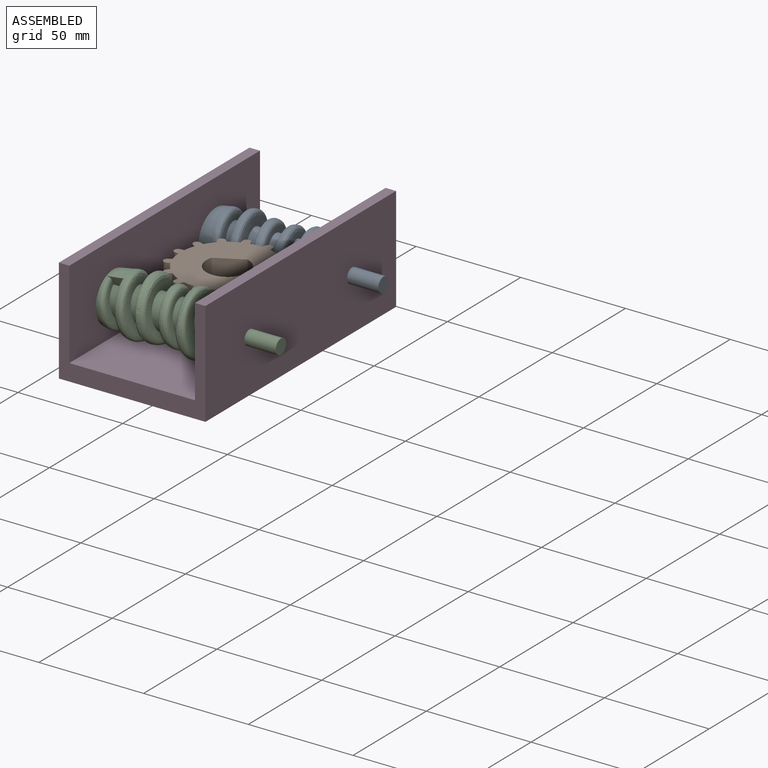
[diagram: assembled view]
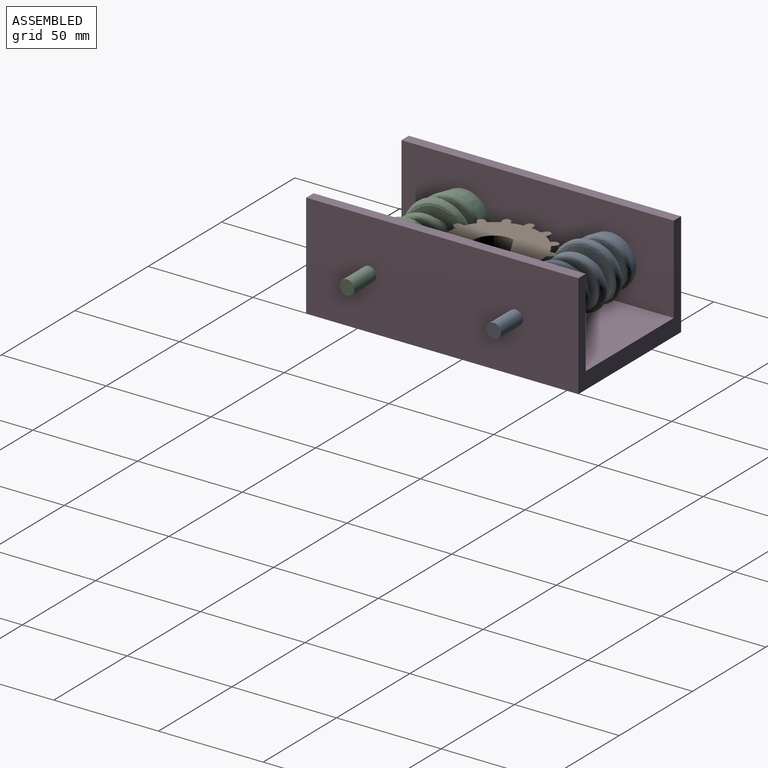
[diagram: assembled view, second angle]
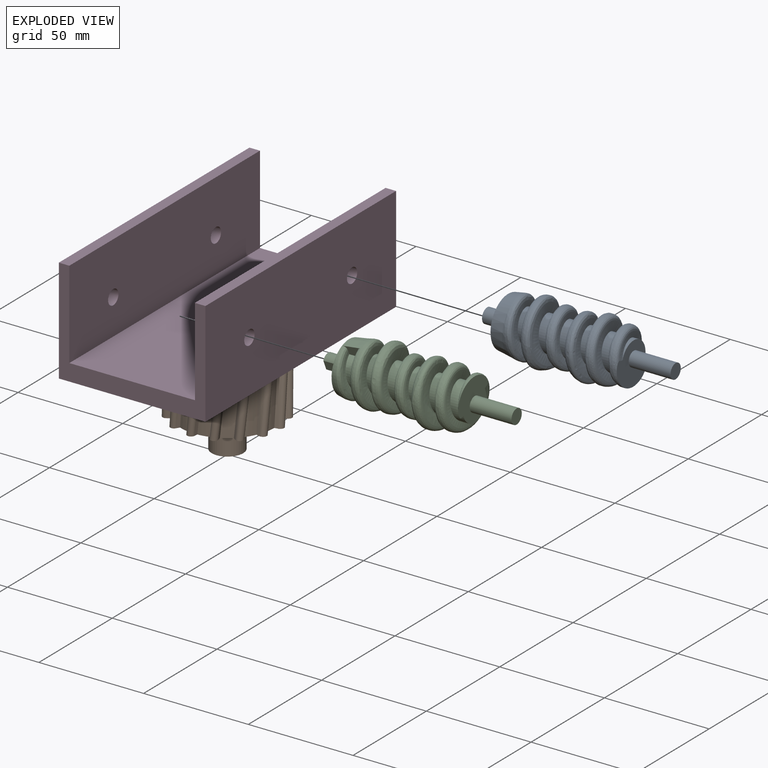
[diagram: exploded view]
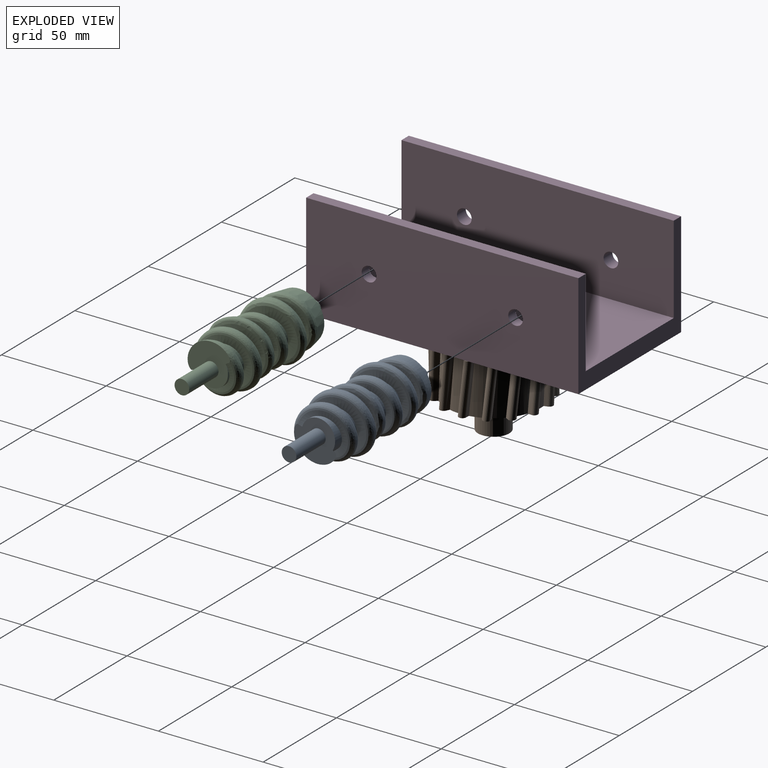
[diagram: exploded view, second angle]
ASSEMBLY  parts=4 mates=3
PART A: 21 faces, bbox 65.4x65.4x91.4 mm
  f0: plane 22.6x21.53mm, normal (0,0,1), area 265.4mm2, adj f2,f3,f4,f6,f11,f15,f20
  f1: plane 9.69x5.84mm, normal (0,1,0), area 28.1mm2, adj f2,f3,f4,f7,f17,f18
  f2: bspline ~64x64mm, area 1103.4mm2, adj f0,f1,f4,f15,f16,f17
  f3: bspline ~60x60mm, area 1228.2mm2, adj f0,f1,f4,f18,f19,f20
  f4: cylinder r=8mm len=57.7mm, axis (0,0,1), area 1580.7mm2, adj f0,f1,f2,f3
  f5: torus R=35mm, axis (0,0,1), area 60.1mm2, adj f15,f16,f18,f19
  f6: cone r=15.36mm half-angle=10deg, axis (0,0,-1), area 80.6mm2, adj f0,f15,f19,f20
  f7: cone r=15.36mm half-angle=10deg, axis (0,0,1), area 414.7mm2, adj f1,f8,f16,f17,f18
  f8: plane 24.02x24.02mm, normal (0,0,-1), area 413.9mm2, adj f7,f9,f18
  f9: cylinder r=3.5mm len=10mm, axis (0,0,1), area 192.8mm2, adj f8,f10,f13,f14
  f10: plane 7x6mm, normal (0,0,-1), area 35.1mm2, adj f9,f13
  f11: cylinder r=3.5mm len=20mm, axis (0,0,-1), area 439.8mm2, adj f0,f12
  f12: plane 7x7mm, normal (0,0,1), area 38.5mm2, adj f11
  f13: plane 5x4.9mm, normal (0,1,0), area 24.5mm2, adj f9,f10,f14
  f14: plane 4.9x1mm, normal (0,0,-1), area 3.4mm2, adj f9,f13
  f15: bspline ~30.28x30.17mm, area 648.9mm2, adj f0,f2,f5,f6,f16,f19
  f16: bspline ~30.89x29.47mm, area 686.9mm2, adj f2,f5,f7,f15,f17,f18
  f17: bspline ~29.09x29.01mm, area 252.1mm2, adj f1,f2,f7,f16
  f18: bspline ~30.16x29.47mm, area 602.8mm2, adj f1,f3,f5,f7,f8,f16,f19
  f19: bspline ~32.01x29.47mm, area 678.8mm2, adj f3,f5,f6,f15,f18,f20
  f20: bspline ~29.9x29.18mm, area 460.4mm2, adj f0,f3,f6,f19
PART B: 82 faces, bbox 54.8x54.5x52.9 mm
  f0: plane 51.76x51.52mm, normal (0,0,1), area 1468.9mm2, adj f1,f3,f4,f5,f6,f7,f8,f9
  f1: bspline ~37.5x5.43mm, area 8mm2, adj f0,f2,f3,f6
  f2: plane 51.74x51.48mm, normal (0,0,-1), area 1577mm2, adj f1,f3,f4,f5,f6,f7,f8,f9
  f3: bspline ~37.5x4.01mm, area 37.4mm2, adj f0,f1,f2,f4
  f4: bspline ~37.5x7.56mm, area 131.8mm2, adj f0,f2,f3,f5
  f5: bspline ~37.5x4.07mm, area 44.7mm2, adj f0,f2,f4,f11
  f6: cylinder r=22.5mm len=25mm, axis (0,0,-1), area 136.8mm2, adj f0,f1,f2,f75
  f7: bspline ~37.5x4.67mm, area 8mm2, adj f0,f2,f8,f11
  f8: bspline ~37.5x4.42mm, area 37.4mm2, adj f0,f2,f7,f9
  f9: bspline ~37.5x8.04mm, area 131.8mm2, adj f0,f2,f8,f10
  f10: bspline ~37.5x3.94mm, area 44.7mm2, adj f0,f2,f9,f16
  f11: cylinder r=22.5mm len=25mm, axis (0,0,-1), area 136.8mm2, adj f0,f2,f5,f7
  f12: bspline ~37.5x5.29mm, area 8mm2, adj f0,f2,f13,f16
  f13: bspline ~37.5x4.07mm, area 37.4mm2, adj f0,f2,f12,f14
  f14: bspline ~37.5x7.46mm, area 131.8mm2, adj f0,f2,f13,f15
  f15: bspline ~37.5x4.36mm, area 44.7mm2, adj f0,f2,f14,f21
  f16: cylinder r=22.5mm len=25mm, axis (0,0,-1), area 136.8mm2, adj f0,f2,f10,f12
  f17: bspline ~37.5x5.73mm, area 8mm2, adj f0,f2,f18,f21
  f18: bspline ~37.5x3.88mm, area 37.4mm2, adj f0,f2,f17,f19
  f19: bspline ~37.5x8.02mm, area 131.8mm2, adj f0,f2,f18,f20
  f20: bspline ~37.5x4.49mm, area 44.7mm2, adj f0,f2,f19,f26
  f21: cylinder r=22.5mm len=25mm, axis (0,0,-1), area 136.8mm2, adj f0,f2,f15,f17
  f22: bspline ~37.5x5.32mm, area 8mm2, adj f0,f2,f23,f26
  f23: bspline ~37.5x4.18mm, area 37.4mm2, adj f0,f2,f22,f24
  f24: bspline ~37.5x7.72mm, area 131.8mm2, adj f0,f2,f23,f25
  f25: bspline ~37.5x3.96mm, area 44.7mm2, adj f0,f2,f24,f31
  f26: cylinder r=22.5mm len=25mm, axis (0,0,-1), area 136.8mm2, adj f0,f2,f20,f22
  f27: bspline ~37.5x4.35mm, area 8mm2, adj f0,f2,f28,f31
  f28: bspline ~25x3.22mm, area 37.4mm2, adj f0,f2,f27,f29
  f29: bspline ~37.5x7.98mm, area 131.8mm2, adj f0,f2,f28,f30
  f30: bspline ~37.5x3.91mm, area 44.7mm2, adj f0,f2,f29,f36
  f31: cylinder r=22.5mm len=25mm, axis (0,0,-1), area 136.8mm2, adj f0,f2,f25,f27
  f32: bspline ~37.5x5.49mm, area 8mm2, adj f0,f2,f33,f36
  f33: bspline ~37.5x3.87mm, area 37.4mm2, adj f0,f2,f32,f34
  f34: bspline ~37.5x7.73mm, area 131.8mm2, adj f0,f2,f33,f35
  f35: bspline ~37.5x4.46mm, area 44.7mm2, adj f0,f2,f34,f41
  f36: cylinder r=22.5mm len=25mm, axis (0,0,-1), area 136.8mm2, adj f0,f2,f30,f32
  f37: bspline ~37.5x5.69mm, area 8mm2, adj f0,f2,f38,f41
  f38: bspline ~37.5x3.87mm, area 37.4mm2, adj f0,f2,f37,f39
  f39: bspline ~37.5x7.94mm, area 131.8mm2, adj f0,f2,f38,f40
  f40: bspline ~37.5x4.4mm, area 44.7mm2, adj f0,f2,f39,f46
  f41: cylinder r=22.5mm len=25mm, axis (0,0,-1), area 136.8mm2, adj f0,f2,f35,f37
  f42: bspline ~37.5x5.16mm, area 8mm2, adj f0,f2,f43,f46
  f43: bspline ~37.5x4.31mm, area 37.4mm2, adj f0,f2,f42,f44
  f44: bspline ~37.5x7.91mm, area 131.8mm2, adj f0,f2,f43,f45
  f45: bspline ~37.5x3.87mm, area 44.7mm2, adj f0,f2,f44,f51
  f46: cylinder r=22.5mm len=25mm, axis (0,0,-1), area 136.8mm2, adj f0,f2,f40,f42
  f47: bspline ~37.5x4.72mm, area 8mm2, adj f0,f2,f48,f51
  f48: bspline ~37.5x4.34mm, area 37.4mm2, adj f0,f2,f47,f49
  f49: bspline ~37.5x7.82mm, area 131.8mm2, adj f0,f2,f48,f50
  f50: bspline ~37.5x4mm, area 44.7mm2, adj f0,f2,f49,f56
  f51: cylinder r=22.5mm len=25mm, axis (0,0,-1), area 136.8mm2, adj f0,f2,f45,f47
  f52: bspline ~37.5x5.64mm, area 8mm2, adj f0,f2,f53,f56
  f53: bspline ~37.5x3.77mm, area 37.4mm2, adj f0,f2,f52,f54
  f54: bspline ~37.5x7.91mm, area 131.8mm2, adj f0,f2,f53,f55
  f55: bspline ~37.5x4.52mm, area 44.7mm2, adj f0,f2,f54,f61
  f56: cylinder r=22.5mm len=25mm, axis (0,0,-1), area 136.8mm2, adj f0,f2,f50,f52
  f57: bspline ~37.5x5.58mm, area 8mm2, adj f0,f2,f58,f61
  f58: bspline ~37.5x3.93mm, area 37.4mm2, adj f0,f2,f57,f59
  f59: bspline ~25x6.17mm, area 131.8mm2, adj f0,f2,f58,f60
  f60: bspline ~37.5x4.26mm, area 44.7mm2, adj f0,f2,f59,f66
  f61: cylinder r=22.5mm len=25mm, axis (0,0,-1), area 136.8mm2, adj f0,f2,f55,f57
  f62: bspline ~37.5x4.94mm, area 8mm2, adj f0,f2,f63,f66
  f63: bspline ~37.5x4.39mm, area 37.4mm2, adj f0,f2,f62,f64
  f64: bspline ~37.5x8.02mm, area 131.8mm2, adj f0,f2,f63,f65
  f65: bspline ~37.5x3.93mm, area 44.7mm2, adj f0,f2,f64,f71
  f66: cylinder r=22.5mm len=25mm, axis (0,0,-1), area 136.8mm2, adj f0,f2,f60,f62
  f67: bspline ~37.5x5.03mm, area 8mm2, adj f0,f2,f68,f71
  f68: bspline ~37.5x4.23mm, area 37.4mm2, adj f0,f2,f67,f69
  f69: bspline ~37.5x7.58mm, area 131.8mm2, adj f0,f2,f68,f70
  f70: bspline ~25x3.27mm, area 44.7mm2, adj f0,f2,f69,f76
  f71: cylinder r=22.5mm len=25mm, axis (0,0,-1), area 136.8mm2, adj f0,f2,f65,f67
  f72: bspline ~37.5x5.72mm, area 8mm2, adj f0,f2,f73,f76
  f73: bspline ~37.5x3.85mm, area 37.4mm2, adj f0,f2,f72,f74
  f74: bspline ~37.5x8.01mm, area 131.8mm2, adj f0,f2,f73,f75
  f75: bspline ~37.5x4.53mm, area 44.7mm2, adj f0,f2,f6,f74
  f76: cylinder r=22.5mm len=25mm, axis (0,0,-1), area 136.8mm2, adj f0,f2,f70,f72
  f77: cylinder r=10mm len=20mm, axis (0,0,1), area 703.9mm2, adj f0,f78,f79
  f78: plane 15x14.28mm, normal (1,0,0), area 214.2mm2, adj f0,f77,f79
  f79: plane 20x17mm, normal (0,0,1), area 284.6mm2, adj f77,f78
  f80: cylinder r=7.5mm len=15mm, axis (0,0,1), area 706.9mm2, adj f2,f81
  f81: plane 15x15mm, normal (0,0,-1), area 176.7mm2, adj f80
PART C: same geometry as A
PART D: 27 faces, bbox 71x130x50 mm
  f0: plane 70x50mm, normal (0,-1,0), area 980mm2, adj f2,f3,f4,f5,f6,f9,f10,f11
  f1: plane 70x50mm, normal (0,1,0), area 980mm2, adj f2,f3,f4,f5,f6,f9,f10,f11
  f2: plane 130x60mm, normal (0,0,1), area 7623.3mm2, adj f0,f1,f4,f9,f26
  f3: plane 130x70mm, normal (0,0,-1), area 8923.3mm2, adj f0,f1,f5,f10,f26
  f4: plane 130x42mm, normal (1,0,0), area 5383mm2, adj f0,f1,f2,f6,f7,f8
  f5: plane 130x50mm, normal (-1,0,0), area 4794.5mm2, adj f0,f1,f3,f6,f14,f17,f21,f24
  f6: plane 130x5mm, normal (0,0,1), area 650mm2, adj f0,f1,f4,f5
  f7: cylinder r=3.5mm len=7mm, axis (-1,0,0), area 131.9mm2, adj f4,f25
  f8: cylinder r=3.5mm len=7mm, axis (-1,0,0), area 131.9mm2, adj f4,f15
  f9: plane 130x42mm, normal (-1,0,0), area 5383mm2, adj f0,f1,f2,f11,f12,f13
  f10: plane 130x50mm, normal (1,0,0), area 6423mm2, adj f0,f1,f3,f11,f12,f13
  f11: plane 130x5mm, normal (0,0,1), area 650mm2, adj f0,f1,f9,f10
  f12: cylinder r=3.5mm len=7mm, axis (-1,0,0), area 110mm2, adj f9,f10
  f13: cylinder r=3.5mm len=7mm, axis (-1,0,0), area 110mm2, adj f9,f10
  f14: cylinder r=11.65mm len=23.3mm, axis (1,0,0), area 73.2mm2, adj f5,f15
  f15: plane 23.3x23.3mm, normal (-1,0,0), area 387.9mm2, adj f8,f14
  f16: cylinder r=3.5mm len=7mm, axis (1,0,0), area 22mm2, adj f18,f19
  f17: cylinder r=11.65mm len=23.3mm, axis (1,0,0), area 73.2mm2, adj f5,f18
  f18: plane 23.3x23.3mm, normal (-1,0,0), area 387.9mm2, adj f16,f17
  f19: plane 7x7mm, normal (-1,0,0), area 38.5mm2, adj f16
  f20: cylinder r=3.5mm len=7mm, axis (1,0,0), area 22mm2, adj f22,f23
  f21: cylinder r=11.65mm len=23.3mm, axis (1,0,0), area 73.2mm2, adj f5,f22
  f22: plane 23.3x23.3mm, normal (-1,0,0), area 387.9mm2, adj f20,f21
  f23: plane 7x7mm, normal (-1,0,0), area 38.5mm2, adj f20
  f24: cylinder r=11.65mm len=23.3mm, axis (1,0,0), area 73.2mm2, adj f5,f25
  f25: plane 23.3x23.3mm, normal (-1,0,0), area 387.9mm2, adj f7,f24
  f26: cylinder r=7.5mm len=15mm, axis (0,0,-1), area 377mm2, adj f2,f3
PLACE A rot(axis=(-0.2,0.96,-0.2),92.4deg) t=(0,35,25)mm
PLACE B rot(axis=(0,0,-1),61.6deg) t=(0,0,8)mm
PLACE C rot(axis=(-0.7,0.15,-0.7),163.4deg) t=(0,-35,25)mm
PLACE D at identity fixed
MATE revolute D.f14 <-> C.f4  axis (1,0,0) through (-30,-35,25)mm
MATE revolute B.f80 <-> D.f26  axis (0,0,1) through (0,0,8)mm
MATE revolute A.f4 <-> D.f24  axis (1,0,0) through (-30,35,25)mm
